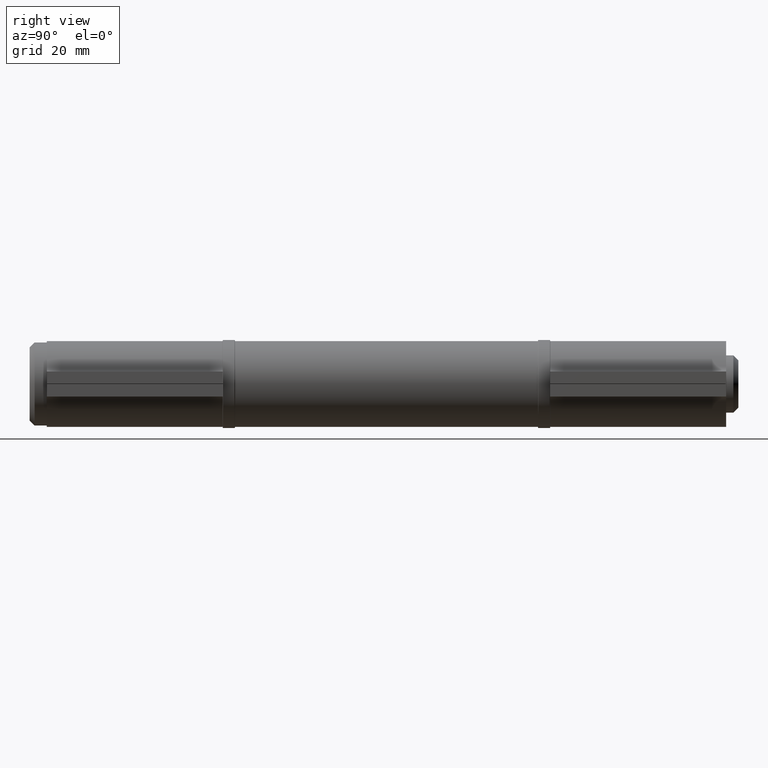
[diagram: clean part render]
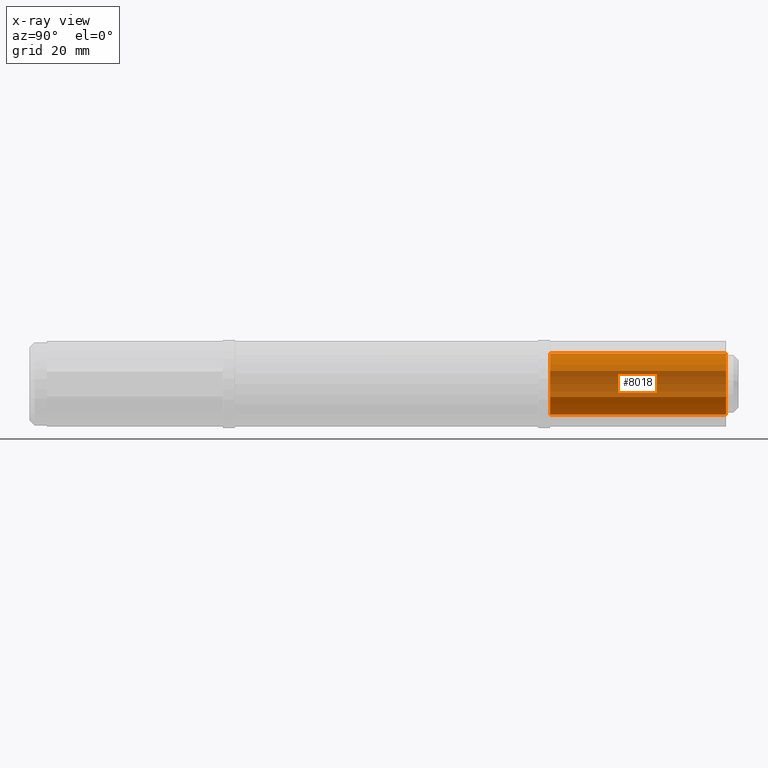
[diagram: x-ray — body ghosted, one internal face saturated and labeled with its STEP entity id]
A machine part, right view, then the same camera in x-ray: the body is ghosted and one INTERNAL B-rep face — a face not visible from any outside direction — is saturated and labeled: STEP entity #8018.
In plain terms, the highlighted cylindrical surface (edge-blend (fillet) strip) has radius 6.3 mm, axis along (0, -1, 0).
Its self-contained STEP definition (entity closure, byte-faithful):
#165 = EDGE_LOOP ( 'NONE', ( #6574, #4300, #7744, #10002 ) ) ;
#837 = CARTESIAN_POINT ( 'NONE',  ( -2.654166666666679664, -18.00000000000000355, -5.713615257046620322 ) ) ;
#1367 = DIRECTION ( 'NONE',  ( 0.000000000000000000, -1.000000000000000000, 0.000000000000000000 ) ) ;
#1643 = LINE ( 'NONE', #9130, #6310 ) ;
#2057 = FACE_OUTER_BOUND ( 'NONE', #165, .T. ) ;
#2107 = VERTEX_POINT ( 'NONE', #5809 ) ;
#2328 = CARTESIAN_POINT ( 'NONE',  ( 0.000000000000000000, 18.00000000000000355, 0.000000000000000000 ) ) ;
#2560 = EDGE_CURVE ( 'NONE', #9758, #9647, #7055, .T. ) ;
#3423 = AXIS2_PLACEMENT_3D ( 'NONE', #5856, #1367, #8545 ) ;
#3702 = DIRECTION ( 'NONE',  ( 0.000000000000000000, -1.000000000000000000, 0.000000000000000000 ) ) ;
#3981 = CARTESIAN_POINT ( 'NONE',  ( 2.654166666666679220, 18.00000000000000355, -5.713615257046620322 ) ) ;
#4180 = DIRECTION ( 'NONE',  ( 0.000000000000000000, 0.000000000000000000, 1.000000000000000000 ) ) ;
#4300 = ORIENTED_EDGE ( 'NONE', *, *, #8368, .F. ) ;
#4623 = VECTOR ( 'NONE', #6986, 1000.000000000000000 ) ;
#5063 = LINE ( 'NONE', #8808, #4623 ) ;
#5082 = DIRECTION ( 'NONE',  ( 0.000000000000000000, 0.000000000000000000, 1.000000000000000000 ) ) ;
#5809 = CARTESIAN_POINT ( 'NONE',  ( 2.654166666666679220, -18.00000000000000355, -5.713615257046620322 ) ) ;
#5856 = CARTESIAN_POINT ( 'NONE',  ( 0.000000000000000000, 18.00000000000000355, 0.000000000000000000 ) ) ;
#5986 = EDGE_CURVE ( 'NONE', #2107, #11658, #7142, .T. ) ;
#6310 = VECTOR ( 'NONE', #3702, 1000.000000000000000 ) ;
#6574 = ORIENTED_EDGE ( 'NONE', *, *, #5986, .T. ) ;
#6986 = DIRECTION ( 'NONE',  ( 0.000000000000000000, -1.000000000000000000, 0.000000000000000000 ) ) ;
#7037 = CYLINDRICAL_SURFACE ( 'NONE', #3423, 6.300000000000048672 ) ;
#7055 = CIRCLE ( 'NONE', #8288, 6.300000000000048672 ) ;
#7142 = CIRCLE ( 'NONE', #9993, 6.300000000000048672 ) ;
#7672 = EDGE_CURVE ( 'NONE', #9758, #2107, #5063, .T. ) ;
#7744 = ORIENTED_EDGE ( 'NONE', *, *, #2560, .F. ) ;
#8018 = ADVANCED_FACE ( 'NONE', ( #2057 ), #7037, .F. ) ;
#8288 = AXIS2_PLACEMENT_3D ( 'NONE', #2328, #10486, #5082 ) ;
#8368 = EDGE_CURVE ( 'NONE', #9647, #11658, #1643, .T. ) ;
#8545 = DIRECTION ( 'NONE',  ( 0.000000000000000000, 0.000000000000000000, -1.000000000000000000 ) ) ;
#8607 = CARTESIAN_POINT ( 'NONE',  ( 0.000000000000000000, -18.00000000000000355, 0.000000000000000000 ) ) ;
#8808 = CARTESIAN_POINT ( 'NONE',  ( 2.654166666666679220, 18.00000000000000355, -5.713615257046620322 ) ) ;
#9130 = CARTESIAN_POINT ( 'NONE',  ( -2.654166666666679664, 18.00000000000000355, -5.713615257046620322 ) ) ;
#9455 = CARTESIAN_POINT ( 'NONE',  ( -2.654166666666679664, 18.00000000000000355, -5.713615257046620322 ) ) ;
#9647 = VERTEX_POINT ( 'NONE', #9455 ) ;
#9758 = VERTEX_POINT ( 'NONE', #3981 ) ;
#9993 = AXIS2_PLACEMENT_3D ( 'NONE', #8607, #11383, #4180 ) ;
#10002 = ORIENTED_EDGE ( 'NONE', *, *, #7672, .T. ) ;
#10486 = DIRECTION ( 'NONE',  ( 0.000000000000000000, -1.000000000000000000, 0.000000000000000000 ) ) ;
#11383 = DIRECTION ( 'NONE',  ( 0.000000000000000000, -1.000000000000000000, 0.000000000000000000 ) ) ;
#11658 = VERTEX_POINT ( 'NONE', #837 ) ;